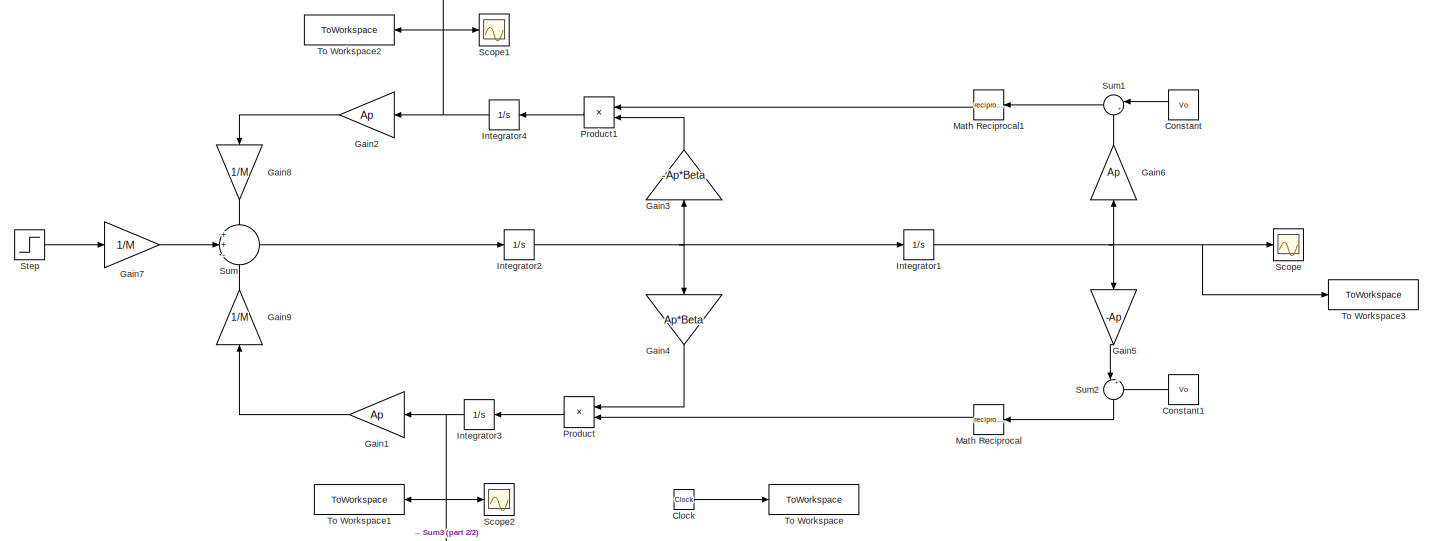
[diagram: root canvas - part 1/2, most of the canvas]
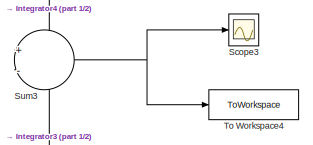
[diagram: root canvas - part 2/2, middle right region]
MODEL slx_530c8f85b686
KIND model
CONFIG AbsTol = auto
CONFIG EnableMultiTasking = off
CONFIG FixedStep = 0.0005
CONFIG MaxStep = auto
CONFIG MinStep = auto
CONFIG RelTol = 1e-3
CONFIG SampleTimeConstraint = Unconstrained
CONFIG Solver = ode4
CONFIG SolverName = ode4
CONFIG StartTime = 0.0
CONFIG StopTime = 0.25
BLOCK [Clock] Clock
BLOCK [Constant] Constant
  NameLocation = top
  Value = Vo
BLOCK [Constant] Constant1
  NameLocation = top
  Value = Vo
BLOCK [Gain] Gain1
  Gain = Ap
  NameLocation = top
BLOCK [Gain] Gain2
  Gain = Ap
  NameLocation = top
BLOCK [Gain] Gain3
  Gain = -Ap*Beta
  NameLocation = right
BLOCK [Gain] Gain4
  Gain = Ap*Beta
  NameLocation = left
BLOCK [Gain] Gain5
  Gain = -Ap
  NameLocation = left
BLOCK [Gain] Gain6
  Gain = Ap
  NameLocation = right
BLOCK [Gain] Gain7
  Gain = 1/M
BLOCK [Gain] Gain8
  Gain = 1/M
  NameLocation = left
BLOCK [Gain] Gain9
  Gain = 1/M
  NameLocation = left
BLOCK [Integrator] Integrator1
  Ports = [1, 1]
BLOCK [Integrator] Integrator2
  Ports = [1, 1]
BLOCK [Integrator] Integrator3
  InitialCondition = P20
  NameLocation = top
  Ports = [1, 1]
BLOCK [Integrator] Integrator4
  InitialCondition = P10
  NameLocation = top
  Ports = [1, 1]
BLOCK [Math] Math Reciprocal
  NameLocation = top
  Operator = reciprocal
  Ports = [1, 1]
  SignedPower = on
BLOCK [Math] Math Reciprocal1
  NameLocation = top
  Operator = reciprocal
  Ports = [1, 1]
  SignedPower = on
BLOCK [Product] Product
  NameLocation = top
  Ports = [2, 1]
BLOCK [Product] Product1
  NameLocation = top
  Ports = [2, 1]
BLOCK [Scope] Scope
  Floating = off
  NumInputPorts = 1
  Ports = [1]
  ScopeSpecificationString = Simulink.scopes.TimeScopeBlockCfg('CurrentConfiguration', extmgr.ConfigurationSet(extmgr.Configuration('Core','General UI',true),extmgr.Configuration('Core','Source UI',true),extmgr.Configuration('Sources','WiredSimulink',true),extmgr.Configuration('Visuals','Time Domain',true,'SerializedDisplays',{struct('MinYLimReal','-0.000007','MaxYLimReal','0.00006','YLabelReal','','MinYLimMag','0.000000','Ma...<+1364ch>
BLOCK [Scope] Scope1
  Floating = off
  NumInputPorts = 1
  Ports = [1]
  ScopeSpecificationString = Simulink.scopes.TimeScopeBlockCfg('CurrentConfiguration', extmgr.ConfigurationSet(extmgr.Configuration('Core','General UI',true),extmgr.Configuration('Core','Source UI',true),extmgr.Configuration('Sources','WiredSimulink',true,'DataLoggingVariableName','ScopeData1'),extmgr.Configuration('Visuals','Time Domain',true,'SerializedDisplays',{struct('MinYLimReal','8875635.64085','MaxYLimReal','10124929....<+1449ch>
BLOCK [Scope] Scope2
  Floating = off
  NumInputPorts = 1
  Ports = [1]
  ScopeSpecificationString = Simulink.scopes.TimeScopeBlockCfg('CurrentConfiguration', extmgr.ConfigurationSet(extmgr.Configuration('Core','General UI',true),extmgr.Configuration('Core','Source UI',true),extmgr.Configuration('Sources','WiredSimulink',true,'DataLoggingVariableName','ScopeData2'),extmgr.Configuration('Visuals','Time Domain',true,'SerializedDisplays',{struct('MinYLimReal','9874943.21922','MaxYLimReal','11125511....<+1449ch>
BLOCK [Scope] Scope3
  Floating = off
  NumInputPorts = 1
  Ports = [1]
  ScopeSpecificationString = Simulink.scopes.TimeScopeBlockCfg('CurrentConfiguration', extmgr.ConfigurationSet(extmgr.Configuration('Core','General UI',true),extmgr.Configuration('Core','Source UI',true),extmgr.Configuration('Sources','WiredSimulink',true,'DataLoggingVariableName','ScopeData3'),extmgr.Configuration('Visuals','Time Domain',true,'SerializedDisplays',{struct('MinYLimReal','-2249875.38619','MaxYLimReal','249986.1...<+1462ch>
BLOCK [Step] Step
  After = F
  SampleTime = 0
  Time = 0
BLOCK [Sum] Sum
  Inputs = ++-
  Ports = [3, 1]
BLOCK [Sum] Sum1
  Inputs = |++
  NameLocation = top
  Ports = [2, 1]
BLOCK [Sum] Sum2
  Inputs = |++
  NameLocation = left
  Ports = [2, 1]
BLOCK [Sum] Sum3
  Inputs = +-
  Ports = [2, 1]
BLOCK [ToWorkspace] To Workspace
  FixptAsFi = on
  MaxDataPoints = inf
  Ports = [1]
  SampleTime = -1
  VariableName = t
BLOCK [ToWorkspace] To Workspace1
  FixptAsFi = on
  MaxDataPoints = inf
  NameLocation = top
  Ports = [1]
  SampleTime = -1
  VariableName = P2
BLOCK [ToWorkspace] To Workspace2
  FixptAsFi = on
  MaxDataPoints = inf
  NameLocation = top
  Ports = [1]
  SampleTime = -1
  VariableName = P1
BLOCK [ToWorkspace] To Workspace3
  FixptAsFi = on
  MaxDataPoints = inf
  Ports = [1]
  SampleTime = -1
  VariableName = Xp
BLOCK [ToWorkspace] To Workspace4
  FixptAsFi = on
  MaxDataPoints = inf
  Ports = [1]
  SampleTime = -1
  VariableName = Pl
LINE Clock:1 -> To Workspace:1
LINE Constant1:1 -> Sum2:2
LINE Constant:1 -> Sum1:1
LINE Gain1:1 -> Gain9:1
LINE Gain2:1 -> Gain8:1
LINE Gain3:1 -> Product1:2
LINE Gain4:1 -> Product:1
LINE Gain5:1 -> Sum2:1
LINE Gain6:1 -> Sum1:2
LINE Gain7:1 -> Sum:2
LINE Gain8:1 -> Sum:1
LINE Gain9:1 -> Sum:3
NET Integrator1:1 -> Gain5:1, Gain6:1, Scope:1, To Workspace3:1
NET Integrator2:1 -> Gain3:1, Gain4:1, Integrator1:1
NET Integrator3:1 -> Gain1:1, Scope2:1, Sum3:2, To Workspace1:1
NET Integrator4:1 -> Gain2:1, Scope1:1, Sum3:1, To Workspace2:1
LINE Math Reciprocal1:1 -> Product1:1
LINE Math Reciprocal:1 -> Product:2
LINE Product1:1 -> Integrator4:1
LINE Product:1 -> Integrator3:1
LINE Step:1 -> Gain7:1
LINE Sum1:1 -> Math Reciprocal1:1
LINE Sum2:1 -> Math Reciprocal:1
NET Sum3:1 -> Scope3:1, To Workspace4:1
LINE Sum:1 -> Integrator2:1
note: NET lines group one-source signal fan-out (src -> all destinations, sorted); 1:1 wires keep LINE
